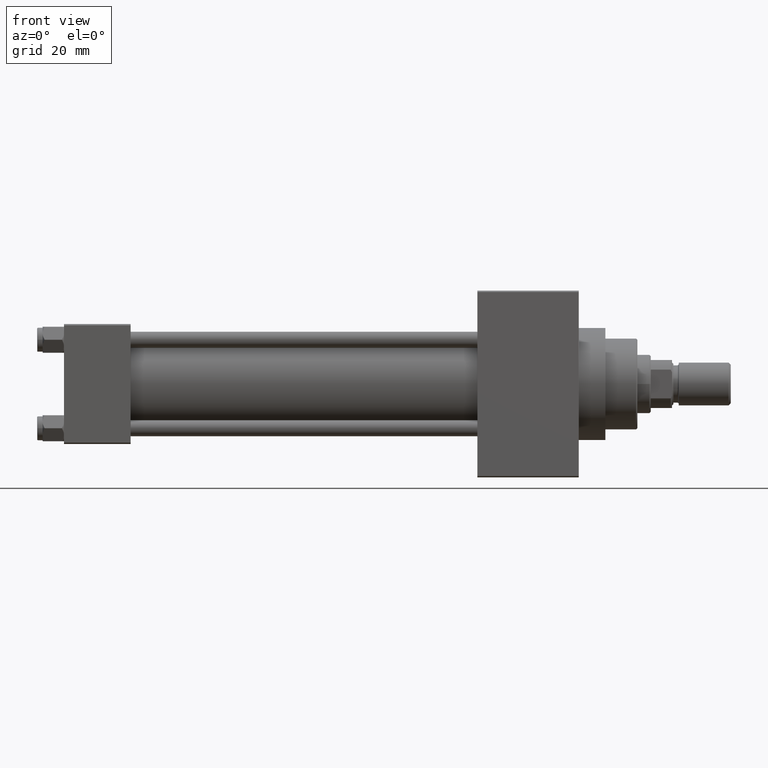
[diagram: clean part render]
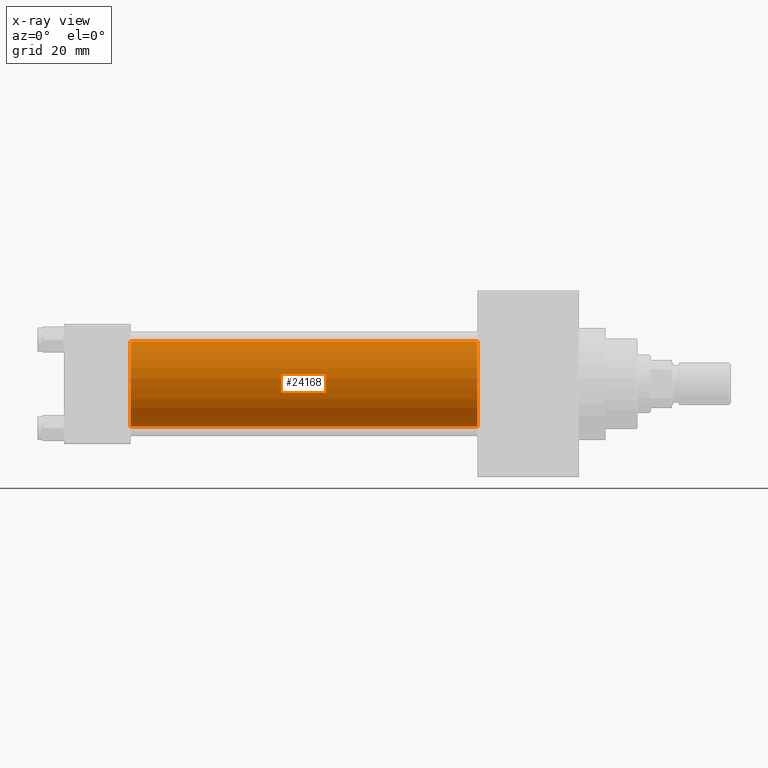
[diagram: x-ray — body ghosted, one internal face saturated and labeled with its STEP entity id]
A machine part, front view, then the same camera in x-ray: the body is ghosted and one INTERNAL B-rep face — a face not visible from any outside direction — is saturated and labeled: STEP entity #24168.
In plain terms, the highlighted cylindrical surface (partial cylindrical patch) has radius 16 mm, axis along (-1, -0, -0).
Its self-contained STEP definition (entity closure, byte-faithful):
#284 = DIRECTION ( 'NONE',  ( -1.000000000000000000, -0.000000000000000000, -0.000000000000000000 ) ) ;
#607 = ORIENTED_EDGE ( 'NONE', *, *, #16968, .T. ) ;
#713 = VERTEX_POINT ( 'NONE', #31778 ) ;
#1795 = CIRCLE ( 'NONE', #43770, 16.00000000000000000 ) ;
#1957 = LINE ( 'NONE', #33587, #35117 ) ;
#3745 = DIRECTION ( 'NONE',  ( 0.000000000000000000, 0.000000000000000000, 1.000000000000000000 ) ) ;
#5029 = ORIENTED_EDGE ( 'NONE', *, *, #37064, .F. ) ;
#11581 = CARTESIAN_POINT ( 'NONE',  ( 25.00000000000000000, -2.602085213965210642E-15, 0.000000000000000000 ) ) ;
#13677 = ORIENTED_EDGE ( 'NONE', *, *, #32419, .F. ) ;
#15056 = DIRECTION ( 'NONE',  ( 1.000000000000000000, 0.000000000000000000, 0.000000000000000000 ) ) ;
#15651 = VERTEX_POINT ( 'NONE', #33200 ) ;
#16968 = EDGE_CURVE ( 'NONE', #15651, #17043, #1795, .T. ) ;
#17043 = VERTEX_POINT ( 'NONE', #19610 ) ;
#17240 = CARTESIAN_POINT ( 'NONE',  ( 155.0000000000000000, -2.602085213965210642E-15, 0.000000000000000000 ) ) ;
#17310 = LINE ( 'NONE', #24513, #40826 ) ;
#17735 = DIRECTION ( 'NONE',  ( 0.000000000000000000, 0.000000000000000000, -1.000000000000000000 ) ) ;
#17982 = DIRECTION ( 'NONE',  ( 1.000000000000000000, 0.000000000000000000, 0.000000000000000000 ) ) ;
#19610 = CARTESIAN_POINT ( 'NONE',  ( 155.0000000000000000, -6.426503353294456087E-16, -16.00000000000000000 ) ) ;
#22903 = EDGE_CURVE ( 'NONE', #17043, #713, #1957, .T. ) ;
#24168 = ADVANCED_FACE ( 'NONE', ( #30268 ), #26053, .F. ) ;
#24513 = CARTESIAN_POINT ( 'NONE',  ( 155.0000000000000000, -2.602085213965210642E-15, 16.00000000000000000 ) ) ;
#25974 = DIRECTION ( 'NONE',  ( 0.000000000000000000, 0.000000000000000000, -1.000000000000000000 ) ) ;
#26053 = CYLINDRICAL_SURFACE ( 'NONE', #44681, 16.00000000000000000 ) ;
#30268 = FACE_OUTER_BOUND ( 'NONE', #42922, .T. ) ;
#31778 = CARTESIAN_POINT ( 'NONE',  ( 25.00000000000000000, -6.426503353294456087E-16, -16.00000000000000000 ) ) ;
#32187 = DIRECTION ( 'NONE',  ( -1.000000000000000000, -0.000000000000000000, -0.000000000000000000 ) ) ;
#32419 = EDGE_CURVE ( 'NONE', #15651, #34774, #17310, .T. ) ;
#33200 = CARTESIAN_POINT ( 'NONE',  ( 155.0000000000000000, -2.602085213965210642E-15, 16.00000000000000000 ) ) ;
#33587 = CARTESIAN_POINT ( 'NONE',  ( 155.0000000000000000, -6.426503353294456087E-16, -16.00000000000000000 ) ) ;
#34774 = VERTEX_POINT ( 'NONE', #37884 ) ;
#35117 = VECTOR ( 'NONE', #32187, 1000.000000000000000 ) ;
#35437 = CIRCLE ( 'NONE', #42563, 16.00000000000000000 ) ;
#36798 = ORIENTED_EDGE ( 'NONE', *, *, #22903, .T. ) ;
#37064 = EDGE_CURVE ( 'NONE', #34774, #713, #35437, .T. ) ;
#37884 = CARTESIAN_POINT ( 'NONE',  ( 25.00000000000000000, -2.602085213965210642E-15, 16.00000000000000000 ) ) ;
#40826 = VECTOR ( 'NONE', #48072, 1000.000000000000000 ) ;
#42563 = AXIS2_PLACEMENT_3D ( 'NONE', #11581, #15056, #25974 ) ;
#42922 = EDGE_LOOP ( 'NONE', ( #607, #36798, #5029, #13677 ) ) ;
#43770 = AXIS2_PLACEMENT_3D ( 'NONE', #17240, #17982, #17735 ) ;
#44681 = AXIS2_PLACEMENT_3D ( 'NONE', #45155, #284, #3745 ) ;
#45155 = CARTESIAN_POINT ( 'NONE',  ( 155.0000000000000000, -2.602085213965210642E-15, 0.000000000000000000 ) ) ;
#48072 = DIRECTION ( 'NONE',  ( -1.000000000000000000, -0.000000000000000000, -0.000000000000000000 ) ) ;